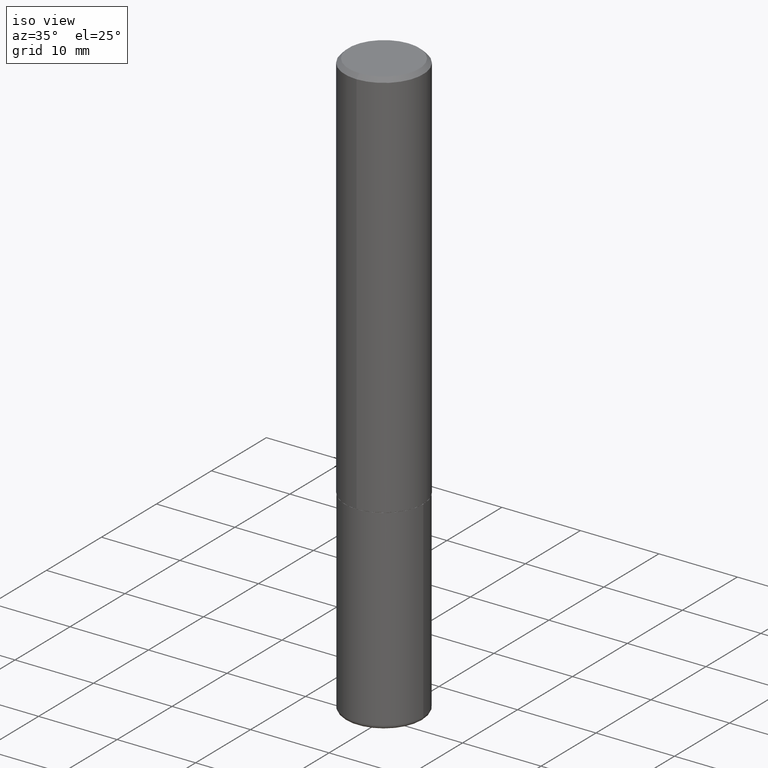
[diagram: clean part render]
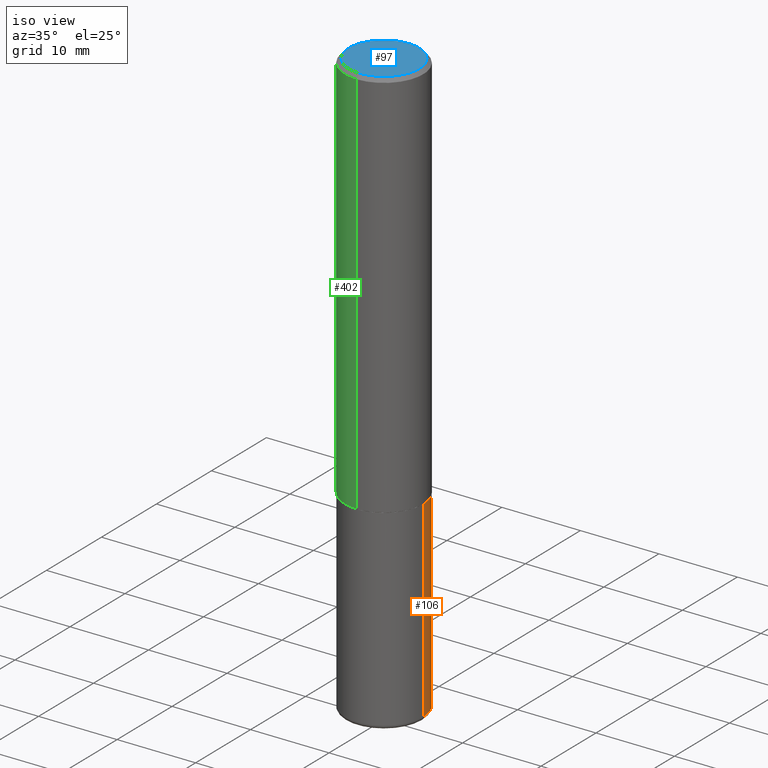
[diagram: same view with three faces highlighted in distinct colors, each labeled with its STEP entity id]
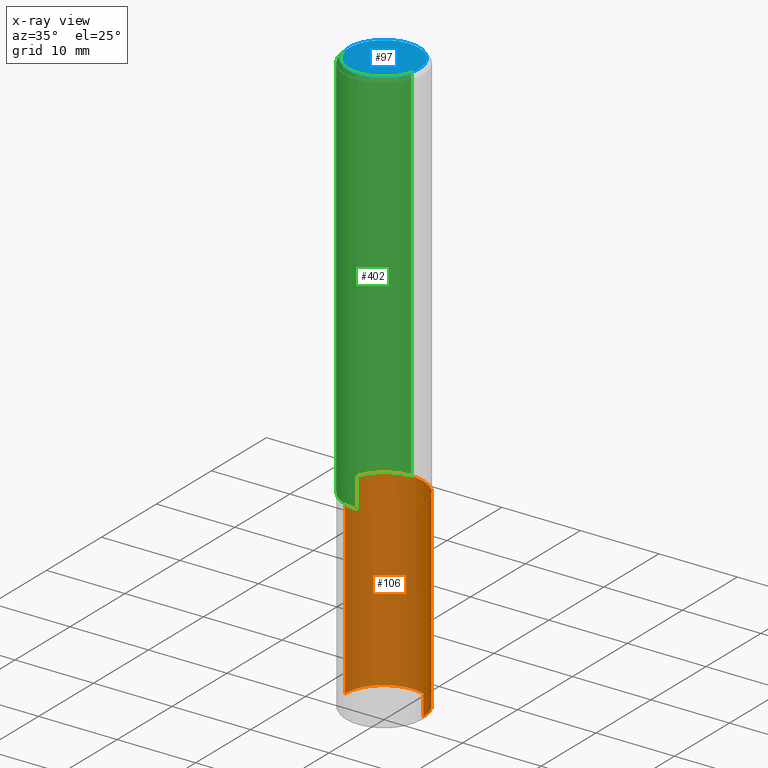
[diagram: x-ray of the same camera — body ghosted, the three highlighted faces saturated]
A machine part, iso view with three faces highlighted in distinct colors.
The next image is the same camera in x-ray (body ghosted, the three faces saturated) — at least one of them is partly hidden behind the body in this view.
Their STEP definitions:

[orange] entity #106 — the highlighted cylindrical surface (partial cylindrical patch) has radius 5 mm, axis along (-0, 0, 1).
#1 = DIRECTION ( 'NONE',  ( -2.445468806185136597E-29, 3.491481338843145583E-15, 1.000000000000000000 ) ) ;
#6 = EDGE_LOOP ( 'NONE', ( #145, #100, #98, #329 ) ) ;
#28 = CARTESIAN_POINT ( 'NONE',  ( 0.1968499999999999417, -1.161546011806337053E-14, -2.933100000000000041 ) ) ;
#47 = AXIS2_PLACEMENT_3D ( 'NONE', #252, #1, #142 ) ;
#58 = DIRECTION ( 'NONE',  ( -2.445468806185136597E-29, 3.491481338843145583E-15, 1.000000000000000000 ) ) ;
#68 = CARTESIAN_POINT ( 'NONE',  ( 0.1968500000000000250, -8.247577218615273316E-15, -1.968499999999999694 ) ) ;
#86 = LINE ( 'NONE', #173, #121 ) ;
#98 = ORIENTED_EDGE ( 'NONE', *, *, #247, .F. ) ;
#99 = CIRCLE ( 'NONE', #47, 0.1968499999999999694 ) ;
#100 = ORIENTED_EDGE ( 'NONE', *, *, #117, .T. ) ;
#106 = ADVANCED_FACE ( 'NONE', ( #268 ), #336, .T. ) ;
#117 = EDGE_CURVE ( 'NONE', #301, #369, #86, .T. ) ;
#121 = VECTOR ( 'NONE', #210, 39.37007874015748143 ) ;
#136 = VERTEX_POINT ( 'NONE', #28 ) ;
#141 = EDGE_CURVE ( 'NONE', #136, #397, #267, .T. ) ;
#142 = DIRECTION ( 'NONE',  ( 1.000000000000000000, -6.982962677686269866E-15, 0.000000000000000000 ) ) ;
#145 = ORIENTED_EDGE ( 'NONE', *, *, #264, .T. ) ;
#149 = VECTOR ( 'NONE', #184, 39.37007874015748143 ) ;
#162 = CIRCLE ( 'NONE', #416, 0.1968500000000000250 ) ;
#173 = CARTESIAN_POINT ( 'NONE',  ( -0.1968499999999999694, 1.398703375343756999E-15, -9.682923725166782276E-30 ) ) ;
#184 = DIRECTION ( 'NONE',  ( -2.445468806185136877E-29, 3.491481338843145188E-15, 1.000000000000000000 ) ) ;
#187 = CARTESIAN_POINT ( 'NONE',  ( -0.1968500000000000250, -7.158219089893024104E-15, -1.968499999999999694 ) ) ;
#191 = CARTESIAN_POINT ( 'NONE',  ( 0.000000000000000000, 0.000000000000000000, 0.000000000000000000 ) ) ;
#207 = DIRECTION ( 'NONE',  ( 1.000000000000000000, -6.982962677686267499E-15, 0.000000000000000000 ) ) ;
#210 = DIRECTION ( 'NONE',  ( -2.445468806185136877E-29, 3.491481338843145188E-15, 1.000000000000000000 ) ) ;
#234 = DIRECTION ( 'NONE',  ( -2.445468806185136597E-29, 3.491481338843145583E-15, 1.000000000000000000 ) ) ;
#247 = EDGE_CURVE ( 'NONE', #397, #369, #162, .T. ) ;
#252 = CARTESIAN_POINT ( 'NONE',  ( 7.172804555421624566E-29, -1.024086391496083050E-14, -2.933100000000000041 ) ) ;
#264 = EDGE_CURVE ( 'NONE', #136, #301, #99, .T. ) ;
#267 = LINE ( 'NONE', #403, #149 ) ;
#268 = FACE_OUTER_BOUND ( 'NONE', #6, .T. ) ;
#282 = CARTESIAN_POINT ( 'NONE',  ( -0.1968499999999999417, -8.842160539617071922E-15, -2.933100000000000041 ) ) ;
#301 = VERTEX_POINT ( 'NONE', #282 ) ;
#329 = ORIENTED_EDGE ( 'NONE', *, *, #141, .F. ) ;
#336 = CYLINDRICAL_SURFACE ( 'NONE', #362, 0.1968499999999999694 ) ;
#362 = AXIS2_PLACEMENT_3D ( 'NONE', #191, #234, #381 ) ;
#369 = VERTEX_POINT ( 'NONE', #187 ) ;
#375 = CARTESIAN_POINT ( 'NONE',  ( 4.813905344975440714E-29, -6.872981015512730918E-15, -1.968499999999999694 ) ) ;
#381 = DIRECTION ( 'NONE',  ( 1.000000000000000000, -6.982962677686266711E-15, 4.876176775795935793E-29 ) ) ;
#397 = VERTEX_POINT ( 'NONE', #68 ) ;
#403 = CARTESIAN_POINT ( 'NONE',  ( 0.1968499999999999694, -1.374596203102541411E-15, 9.598753983154298056E-30 ) ) ;
#416 = AXIS2_PLACEMENT_3D ( 'NONE', #375, #58, #207 ) ;

[blue] entity #97 — the highlighted planar face has unit normal (0, -0, -1).
#26 = DIRECTION ( 'NONE',  ( -6.982962677686265922E-15, -1.000000000000000000, 3.491767699944464940E-15 ) ) ;
#40 = AXIS2_PLACEMENT_3D ( 'NONE', #347, #352, #206 ) ;
#44 = FACE_OUTER_BOUND ( 'NONE', #195, .T. ) ;
#49 = CARTESIAN_POINT ( 'NONE',  ( -1.281884050883609900E-15, -0.1768499999999998407, 8.395324101811677409E-16 ) ) ;
#55 = CARTESIAN_POINT ( 'NONE',  ( 1.304766576325678705E-15, 0.1768499999999998407, -3.955058252891884244E-16 ) ) ;
#67 = AXIS2_PLACEMENT_3D ( 'NONE', #305, #107, #78 ) ;
#77 = CIRCLE ( 'NONE', #40, 0.1768499999999998407 ) ;
#78 = DIRECTION ( 'NONE',  ( 6.982962677686265922E-15, 1.000000000000000000, -3.491767699944464940E-15 ) ) ;
#97 = ADVANCED_FACE ( 'NONE', ( #44 ), #405, .F. ) ;
#103 = VERTEX_POINT ( 'NONE', #49 ) ;
#107 = DIRECTION ( 'NONE',  ( 2.445268841296850876E-29, -3.491767699944464940E-15, -1.000000000000000000 ) ) ;
#195 = EDGE_LOOP ( 'NONE', ( #226, #217 ) ) ;
#206 = DIRECTION ( 'NONE',  ( -6.982962677686265922E-15, -1.000000000000000000, 3.491767699944464940E-15 ) ) ;
#217 = ORIENTED_EDGE ( 'NONE', *, *, #277, .T. ) ;
#226 = ORIENTED_EDGE ( 'NONE', *, *, #237, .T. ) ;
#237 = EDGE_CURVE ( 'NONE', #297, #103, #77, .T. ) ;
#240 = CARTESIAN_POINT ( 'NONE',  ( -5.428821863719041386E-45, 7.752188435212310874E-31, 2.220132924459896583E-16 ) ) ;
#277 = EDGE_CURVE ( 'NONE', #103, #297, #308, .T. ) ;
#297 = VERTEX_POINT ( 'NONE', #55 ) ;
#305 = CARTESIAN_POINT ( 'NONE',  ( 1.234936949548815012E-15, 0.1768499999999998407, -5.065124715121833152E-16 ) ) ;
#308 = CIRCLE ( 'NONE', #320, 0.1768499999999998407 ) ;
#312 = DIRECTION ( 'NONE',  ( -2.445268841296851437E-29, 3.491767699944464545E-15, 1.000000000000000000 ) ) ;
#320 = AXIS2_PLACEMENT_3D ( 'NONE', #240, #312, #26 ) ;
#347 = CARTESIAN_POINT ( 'NONE',  ( -5.428821863719041386E-45, 7.752188435212310874E-31, 2.220132924459896583E-16 ) ) ;
#352 = DIRECTION ( 'NONE',  ( -2.445268841296851437E-29, 3.491767699944464545E-15, 1.000000000000000000 ) ) ;
#405 = PLANE ( 'NONE',  #67 ) ;

[green] entity #402 — the highlighted cylindrical surface (partial cylindrical patch) has radius 5 mm, axis along (-0, 0, 1).
#5 = EDGE_CURVE ( 'NONE', #101, #399, #82, .T. ) ;
#12 = EDGE_LOOP ( 'NONE', ( #75, #366, #115, #410 ) ) ;
#14 = VECTOR ( 'NONE', #271, 39.37007874015748143 ) ;
#15 = AXIS2_PLACEMENT_3D ( 'NONE', #359, #323, #33 ) ;
#19 = DIRECTION ( 'NONE',  ( -2.445268841296851437E-29, 3.491767699944464940E-15, 1.000000000000000000 ) ) ;
#33 = DIRECTION ( 'NONE',  ( -6.982962677686265922E-15, -1.000000000000000000, 3.491767699944464545E-15 ) ) ;
#39 = AXIS2_PLACEMENT_3D ( 'NONE', #109, #337, #270 ) ;
#73 = EDGE_CURVE ( 'NONE', #399, #105, #188, .T. ) ;
#75 = ORIENTED_EDGE ( 'NONE', *, *, #5, .F. ) ;
#82 = LINE ( 'NONE', #85, #14 ) ;
#85 = CARTESIAN_POINT ( 'NONE',  ( 1.398703375343757985E-15, 0.1968500000000001360, -6.873544717340683232E-16 ) ) ;
#89 = VERTEX_POINT ( 'NONE', #112 ) ;
#91 = DIRECTION ( 'NONE',  ( -2.445268841296851437E-29, 3.491767699944464545E-15, 1.000000000000000000 ) ) ;
#92 = LINE ( 'NONE', #307, #372 ) ;
#101 = VERTEX_POINT ( 'NONE', #203 ) ;
#105 = VERTEX_POINT ( 'NONE', #169 ) ;
#109 = CARTESIAN_POINT ( 'NONE',  ( 4.890537682593712927E-31, -6.983535399888942699E-17, -0.02000000000000004205 ) ) ;
#112 = CARTESIAN_POINT ( 'NONE',  ( -1.374596203102495065E-15, -0.1968500000000071026, -1.967499999999998916 ) ) ;
#115 = ORIENTED_EDGE ( 'NONE', *, *, #331, .T. ) ;
#116 = CARTESIAN_POINT ( 'NONE',  ( 4.811066445251554069E-29, -6.870052949640732965E-15, -1.967499999999999805 ) ) ;
#169 = CARTESIAN_POINT ( 'NONE',  ( -1.350489030861325626E-15, -0.1968500000000001082, -0.01999999999999935510 ) ) ;
#185 = CARTESIAN_POINT ( 'NONE',  ( 1.374596203102542200E-15, 0.1968499999999999694, -0.02000000000000072900 ) ) ;
#188 = CIRCLE ( 'NONE', #39, 0.1968500000000000527 ) ;
#203 = CARTESIAN_POINT ( 'NONE',  ( 1.398703375343782440E-15, 0.1968499999999933914, -1.967500000000000471 ) ) ;
#219 = EDGE_CURVE ( 'NONE', #101, #89, #363, .T. ) ;
#232 = AXIS2_PLACEMENT_3D ( 'NONE', #116, #91, #279 ) ;
#270 = DIRECTION ( 'NONE',  ( -6.982962677686265133E-15, -1.000000000000000000, 3.491137977679279029E-15 ) ) ;
#271 = DIRECTION ( 'NONE',  ( -2.445268841296851437E-29, 3.491767699944464940E-15, 1.000000000000000000 ) ) ;
#279 = DIRECTION ( 'NONE',  ( -6.982962677686265922E-15, -1.000000000000000000, 4.163344669033670112E-15 ) ) ;
#307 = CARTESIAN_POINT ( 'NONE',  ( -1.374596203102542397E-15, -0.1968500000000001360, 6.873544717340683232E-16 ) ) ;
#323 = DIRECTION ( 'NONE',  ( -2.445268841296851437E-29, 3.491767699944464545E-15, 1.000000000000000000 ) ) ;
#330 = CYLINDRICAL_SURFACE ( 'NONE', #15, 0.1968500000000001360 ) ;
#331 = EDGE_CURVE ( 'NONE', #89, #105, #92, .T. ) ;
#337 = DIRECTION ( 'NONE',  ( -2.445268841296851437E-29, 3.491767699944464545E-15, 1.000000000000000000 ) ) ;
#359 = CARTESIAN_POINT ( 'NONE',  ( 0.000000000000000000, 0.000000000000000000, 0.000000000000000000 ) ) ;
#361 = FACE_OUTER_BOUND ( 'NONE', #12, .T. ) ;
#363 = CIRCLE ( 'NONE', #232, 0.1968500000000002470 ) ;
#366 = ORIENTED_EDGE ( 'NONE', *, *, #219, .T. ) ;
#372 = VECTOR ( 'NONE', #19, 39.37007874015748143 ) ;
#399 = VERTEX_POINT ( 'NONE', #185 ) ;
#402 = ADVANCED_FACE ( 'NONE', ( #361 ), #330, .T. ) ;
#410 = ORIENTED_EDGE ( 'NONE', *, *, #73, .F. ) ;